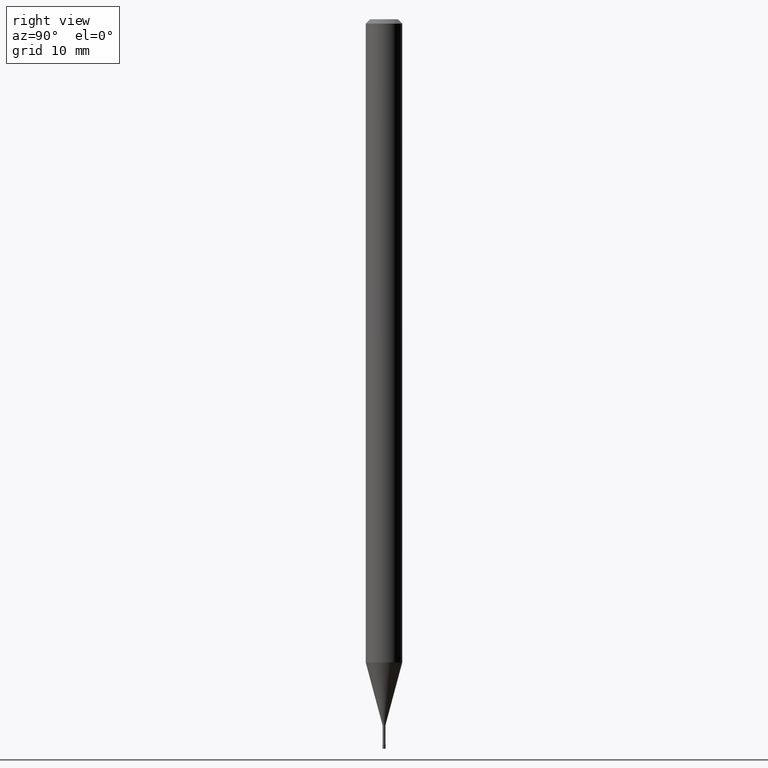
[diagram: clean part render]
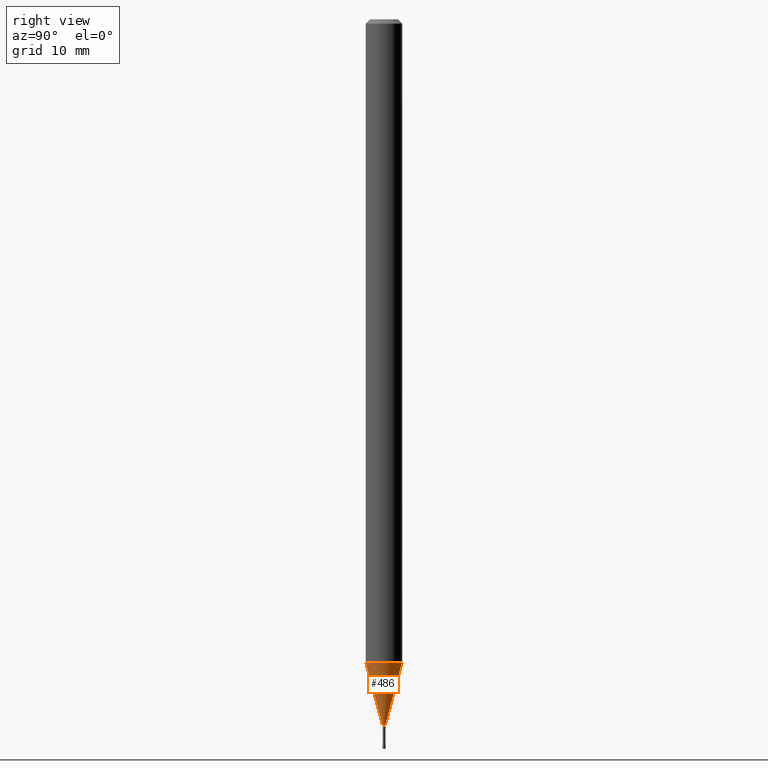
[diagram: same view with one face highlighted and labeled with its STEP entity id]
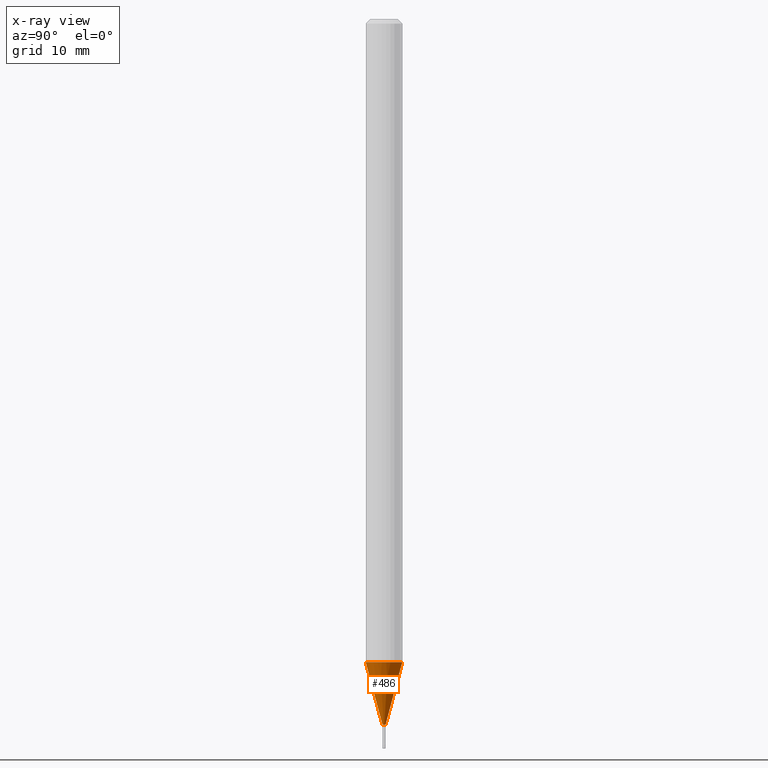
[diagram: x-ray of the same camera — body ghosted, the highlighted face saturated]
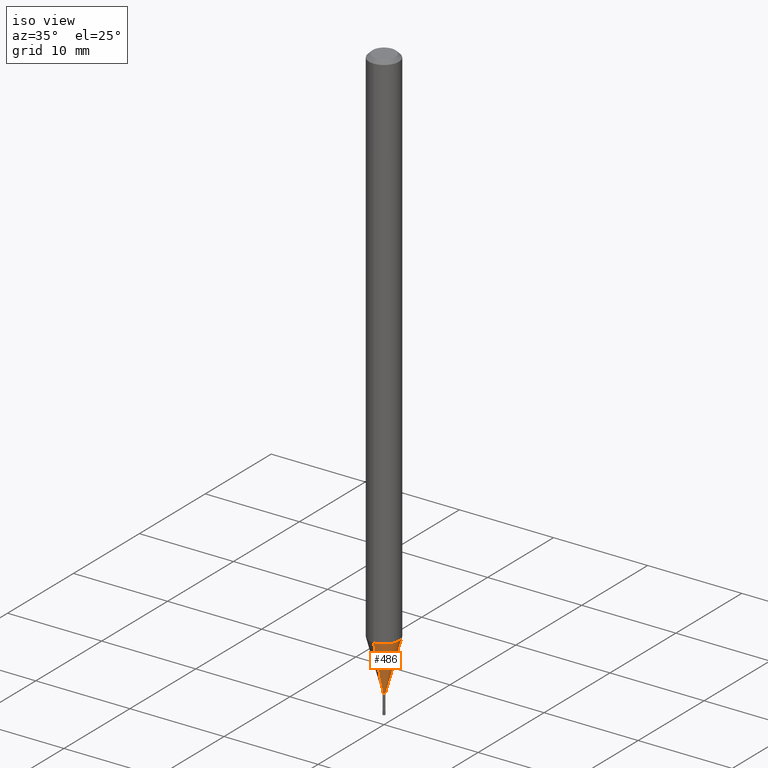
[diagram: same view with one face highlighted and labeled with its STEP entity id]
A machine part, right view. The second image highlights one B-rep face of the part: STEP entity #486.
The next image is the same camera in x-ray: the body ghosted, the highlighted face saturated — about 0% of this face is hidden behind the body in this view.
A second angle (iso view) of the same face is appended — the face is thin or edge-on in the first view.
In plain terms, the highlighted conical surface has half-angle 15 deg.
Its self-contained STEP definition (entity closure, byte-faithful):
#6 = EDGE_CURVE ( 'NONE', #339, #478, #248, .T. ) ;
#46 = CIRCLE ( 'NONE', #296, 0.06250000000000000000 ) ;
#48 = CARTESIAN_POINT ( 'NONE',  ( -4.364351673553377310E-16, -0.06250000000000770217, -2.204287463322519347 ) ) ;
#61 = CARTESIAN_POINT ( 'NONE',  ( 5.388009754391018819E-29, -7.699817961402049709E-15, -2.204287463322519347 ) ) ;
#88 = CARTESIAN_POINT ( 'NONE',  ( 3.702718207188339616E-17, 0.005211112605655535655, -2.418092501787273196 ) ) ;
#90 = CARTESIAN_POINT ( 'NONE',  ( 5.910620190622261292E-29, -8.446662419215079685E-15, -2.418092501787273196 ) ) ;
#93 = DIRECTION ( 'NONE',  ( -2.444331714462359119E-29, 3.493109718909404657E-15, 1.000000000000000000 ) ) ;
#96 = AXIS2_PLACEMENT_3D ( 'NONE', #475, #327, #131 ) ;
#97 = VERTEX_POINT ( 'NONE', #371 ) ;
#127 = EDGE_CURVE ( 'NONE', #97, #387, #326, .T. ) ;
#131 = DIRECTION ( 'NONE',  ( -6.982962677686265922E-15, -1.000000000000000000, 0.000000000000000000 ) ) ;
#136 = EDGE_CURVE ( 'NONE', #97, #339, #429, .T. ) ;
#141 = VECTOR ( 'NONE', #411, 39.37007874015748854 ) ;
#149 = DIRECTION ( 'NONE',  ( -1.807323732225328167E-15, -0.2588190451025179084, 0.9659258262890690894 ) ) ;
#191 = ORIENTED_EDGE ( 'NONE', *, *, #6, .T. ) ;
#201 = CARTESIAN_POINT ( 'NONE',  ( 2.405581959610001048E-16, 0.005211112605655535655, -2.418092501787273196 ) ) ;
#236 = ORIENTED_EDGE ( 'NONE', *, *, #127, .F. ) ;
#248 = LINE ( 'NONE', #88, #141 ) ;
#268 = ORIENTED_EDGE ( 'NONE', *, *, #446, .F. ) ;
#294 = AXIS2_PLACEMENT_3D ( 'NONE', #90, #505, #348 ) ;
#296 = AXIS2_PLACEMENT_3D ( 'NONE', #61, #93, #417 ) ;
#304 = VECTOR ( 'NONE', #149, 39.37007874015748143 ) ;
#315 = CONICAL_SURFACE ( 'NONE', #294, 0.005211112605663982024, 0.2617993877991499629 ) ;
#326 = LINE ( 'NONE', #451, #304 ) ;
#327 = DIRECTION ( 'NONE',  ( -2.444331714462359119E-29, 3.493109718909404657E-15, 1.000000000000000000 ) ) ;
#339 = VERTEX_POINT ( 'NONE', #201 ) ;
#348 = DIRECTION ( 'NONE',  ( -6.982962677686265922E-15, -1.000000000000000000, 0.000000000000000000 ) ) ;
#371 = CARTESIAN_POINT ( 'NONE',  ( -3.638900483451291198E-17, -0.005211112605672428393, -2.418092501787273196 ) ) ;
#380 = EDGE_LOOP ( 'NONE', ( #464, #191, #268, #236 ) ) ;
#387 = VERTEX_POINT ( 'NONE', #48 ) ;
#402 = CARTESIAN_POINT ( 'NONE',  ( 4.440892098501162587E-16, 0.06249999999999228395, -2.204287463322519791 ) ) ;
#411 = DIRECTION ( 'NONE',  ( 1.839019923739597949E-15, 0.2588190451025246253, 0.9659258262890670910 ) ) ;
#417 = DIRECTION ( 'NONE',  ( -6.982962677686265922E-15, -1.000000000000000000, 4.370956789862821150E-15 ) ) ;
#429 = CIRCLE ( 'NONE', #96, 0.005211112605663982024 ) ;
#446 = EDGE_CURVE ( 'NONE', #387, #478, #46, .T. ) ;
#449 = FACE_OUTER_BOUND ( 'NONE', #380, .T. ) ;
#451 = CARTESIAN_POINT ( 'NONE',  ( -3.638900483451291198E-17, -0.005211112605672428393, -2.418092501787273196 ) ) ;
#464 = ORIENTED_EDGE ( 'NONE', *, *, #136, .T. ) ;
#475 = CARTESIAN_POINT ( 'NONE',  ( 5.910620190622261292E-29, -8.446662419215079685E-15, -2.418092501787273196 ) ) ;
#478 = VERTEX_POINT ( 'NONE', #402 ) ;
#486 = ADVANCED_FACE ( 'NONE', ( #449 ), #315, .T. ) ;
#505 = DIRECTION ( 'NONE',  ( -2.444331714462359119E-29, 3.493109718909404657E-15, 1.000000000000000000 ) ) ;